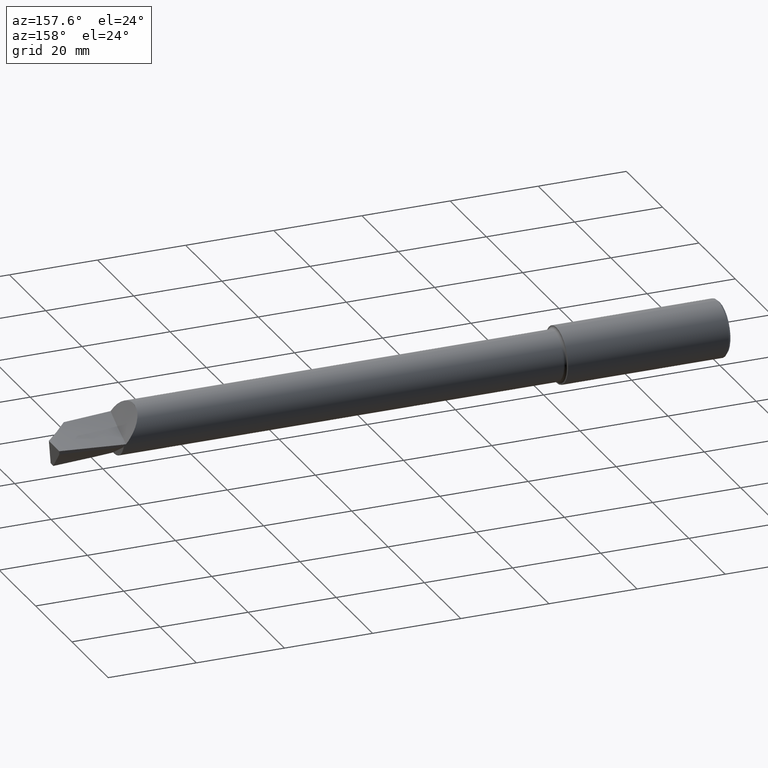
[diagram: clean part render]
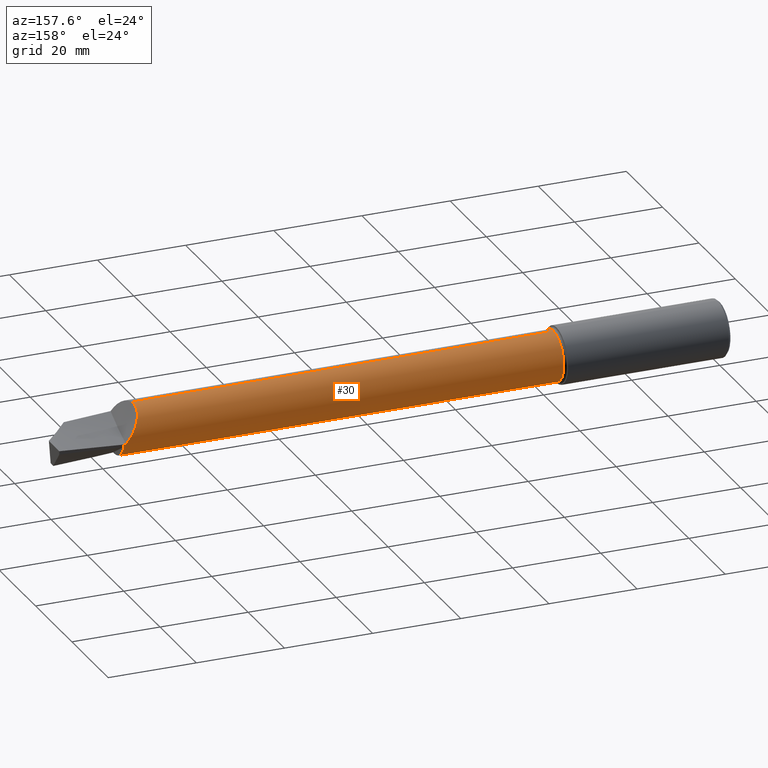
[diagram: same view with one face highlighted and labeled with its STEP entity id]
A machine part, auxiliary view. The second image highlights one B-rep face of the part: STEP entity #30.
In plain terms, the highlighted cylindrical surface (edge-blend (fillet) strip) has radius 5.588 mm, axis along (-1, -0, -0).
Its self-contained STEP definition (entity closure, byte-faithful):
#17 = EDGE_CURVE ( 'NONE', #519, #396, #702, .T. ) ;
#30 = ADVANCED_FACE ( 'NONE', ( #728 ), #202, .T. ) ;
#38 = CARTESIAN_POINT ( 'NONE',  ( 5.252899803584523575, 0.0009714720314203271947, 0.2199983901436112776 ) ) ;
#40 = DIRECTION ( 'NONE',  ( -1.000000000000000000, -0.000000000000000000, -0.000000000000000000 ) ) ;
#44 = CARTESIAN_POINT ( 'NONE',  ( 5.303450587856115561, 0.2017322369564578388, 0.08777317349638595612 ) ) ;
#47 = AXIS2_PLACEMENT_3D ( 'NONE', #613, #492, #260 ) ;
#49 = CARTESIAN_POINT ( 'NONE',  ( 5.252520733773949679, 0.003396144702146769358, 0.2199775199475226262 ) ) ;
#53 = CARTESIAN_POINT ( 'NONE',  ( 5.250000000000000888, 0.02296396303118268881, 0.2187982093206032042 ) ) ;
#69 = DIRECTION ( 'NONE',  ( -1.000000000000000000, -0.000000000000000000, -0.000000000000000000 ) ) ;
#71 = AXIS2_PLACEMENT_3D ( 'NONE', #381, #40, #319 ) ;
#86 = CARTESIAN_POINT ( 'NONE',  ( 5.286822331381984874, 0.1866629217514929606, 0.1166063220459099964 ) ) ;
#90 = CARTESIAN_POINT ( 'NONE',  ( 5.301951721649977856, 0.2006176853541234983, 0.09029816438342547213 ) ) ;
#95 = ORIENTED_EDGE ( 'NONE', *, *, #547, .T. ) ;
#97 = DIRECTION ( 'NONE',  ( 0.000000000000000000, 0.000000000000000000, 1.000000000000000000 ) ) ;
#99 = ORIENTED_EDGE ( 'NONE', *, *, #332, .T. ) ;
#137 = CARTESIAN_POINT ( 'NONE',  ( 5.250000000000000888, 0.09504805913230378323, 0.1984083326253766877 ) ) ;
#146 = CARTESIAN_POINT ( 'NONE',  ( 5.297319446116645736, 0.1969271478189842384, 0.09817724510292789863 ) ) ;
#158 = ORIENTED_EDGE ( 'NONE', *, *, #172, .F. ) ;
#159 = CARTESIAN_POINT ( 'NONE',  ( 5.410000000000000142, 0.000000000000000000, 0.000000000000000000 ) ) ;
#172 = EDGE_CURVE ( 'NONE', #358, #576, #647, .T. ) ;
#177 = DIRECTION ( 'NONE',  ( 1.000000000000000000, -0.000000000000000000, -0.000000000000000000 ) ) ;
#184 = CARTESIAN_POINT ( 'NONE',  ( 5.392944745247168825, 0.2140968924730454748, -0.05062134562993383935 ) ) ;
#196 = CARTESIAN_POINT ( 'NONE',  ( 5.392944745247168825, 0.2140968924730454748, -0.05062134562993383935 ) ) ;
#202 = CYLINDRICAL_SURFACE ( 'NONE', #71, 0.2200000000000000566 ) ;
#205 = CARTESIAN_POINT ( 'NONE',  ( 5.268791352084498669, 0.1599650663951595886, 0.1510341587815036413 ) ) ;
#208 = CARTESIAN_POINT ( 'NONE',  ( 5.410000000000001918, 0.2144189151190963594, -0.04923950486296321122 ) ) ;
#211 = CARTESIAN_POINT ( 'NONE',  ( 5.278168894559946978, 0.1761411732434174648, 0.1324183139899700046 ) ) ;
#216 = CARTESIAN_POINT ( 'NONE',  ( 5.326303742156078158, 0.2141922380105743262, 0.05056821540889350208 ) ) ;
#221 = EDGE_LOOP ( 'NONE', ( #563, #321, #309, #657, #236, #158, #99, #244, #95 ) ) ;
#222 = CARTESIAN_POINT ( 'NONE',  ( 5.264876125876235768, 0.1518534575458663771, 0.1592507360763968649 ) ) ;
#236 = ORIENTED_EDGE ( 'NONE', *, *, #310, .T. ) ;
#239 = EDGE_CURVE ( 'NONE', #732, #519, #412, .T. ) ;
#244 = ORIENTED_EDGE ( 'NONE', *, *, #623, .T. ) ;
#252 = CARTESIAN_POINT ( 'NONE',  ( 5.344850277066564459, 0.2189397232252884296, 0.02160200614133551966 ) ) ;
#260 = DIRECTION ( 'NONE',  ( 0.000000000000000000, 0.000000000000000000, 1.000000000000000000 ) ) ;
#261 = VECTOR ( 'NONE', #713, 39.37007874015748143 ) ;
#262 = CARTESIAN_POINT ( 'NONE',  ( 1.484525038226270244, 2.694222958124177561E-17, -0.2200000000000000566 ) ) ;
#264 = CARTESIAN_POINT ( 'NONE',  ( 5.251069953674378787, 0.01350924812411918516, 0.2196435465291619316 ) ) ;
#270 = CARTESIAN_POINT ( 'NONE',  ( 5.250000000000000888, 0.02296396303118268881, 0.2187982093206032042 ) ) ;
#282 = CARTESIAN_POINT ( 'NONE',  ( 5.251472560536515566, 0.1071583420974530909, 0.1926068782975457749 ) ) ;
#287 = B_SPLINE_CURVE_WITH_KNOTS ( 'NONE', 3,
 ( #447, #282, #573, #521, #752, #625, #222, #739, #459, #611, #508, #205, #378, #211, #86, #558, #681, #146, #618, #90, #323, #567, #329, #44, #514, #747, #216, #452, #631, #687, #393, #603, #252, #311, #494, #421, #320, #561, #731 ),
 .UNSPECIFIED., .F., .F.,
 ( 4, 2, 2, 1, 1, 1, 2, 2, 2, 2, 1, 1, 1, 1, 2, 2, 2, 2, 2, 1, 1, 2, 2, 4 ),
 ( 0.000000000000000000, 0.1250000000000632550, 0.1875000000000961176, 0.2187500000001124656, 0.2343750000001207090, 0.2421875000001248446, 0.2460937500001254830, 0.2500000000001261213, 0.3750000000000630607, 0.4375000000000336398, 0.4687500000000210387, 0.4843750000000147660, 0.4921875000000116018, 0.4960937500000122680, 0.4980468750000126010, 0.5000000000000128786, 0.6249999999999572564, 0.6874999999999319433, 0.7187499999999192868, 0.7343749999999129585, 0.7421874999999098499, 0.7460937499999106270, 0.7499999999999112932, 1.000000000000000000 ),
 .UNSPECIFIED. ) ;
#293 = AXIS2_PLACEMENT_3D ( 'NONE', #692, #749, #584 ) ;
#295 = EDGE_CURVE ( 'NONE', #661, #456, #591, .T. ) ;
#303 = CARTESIAN_POINT ( 'NONE',  ( 5.410000000000001918, 0.2144189151190963594, -0.04923950486296321122 ) ) ;
#308 = CARTESIAN_POINT ( 'NONE',  ( 5.410000000000000142, 0.2135228625924187884, -0.05299044395307136307 ) ) ;
#309 = ORIENTED_EDGE ( 'NONE', *, *, #17, .F. ) ;
#310 = EDGE_CURVE ( 'NONE', #732, #576, #460, .T. ) ;
#311 = CARTESIAN_POINT ( 'NONE',  ( 5.345672065019172692, 0.2190582683874626457, 0.02033850287371858495 ) ) ;
#316 = CARTESIAN_POINT ( 'NONE',  ( 5.252989359298702254, 0.0004094560187717709667, 0.2200000003197546961 ) ) ;
#319 = DIRECTION ( 'NONE',  ( 0.000000000000000000, 0.000000000000000000, 1.000000000000000000 ) ) ;
#320 = CARTESIAN_POINT ( 'NONE',  ( 5.361872680313166661, 0.2211791025387655485, -0.004520542396876575664 ) ) ;
#321 = ORIENTED_EDGE ( 'NONE', *, *, #344, .T. ) ;
#323 = CARTESIAN_POINT ( 'NONE',  ( 5.302742053925486587, 0.2012100239217667619, 0.08896533452429478128 ) ) ;
#329 = CARTESIAN_POINT ( 'NONE',  ( 5.303309749101932979, 0.2016291004824135591, 0.08800993919113511699 ) ) ;
#332 = EDGE_CURVE ( 'NONE', #358, #590, #287, .T. ) ;
#335 = CARTESIAN_POINT ( 'NONE',  ( 5.253048836201133831, -1.183062825525345383E-06, 0.2200124226379089887 ) ) ;
#342 = VERTEX_POINT ( 'NONE', #208 ) ;
#344 = EDGE_CURVE ( 'NONE', #456, #396, #673, .T. ) ;
#353 = CARTESIAN_POINT ( 'NONE',  ( 0.000000000000000000, 0.000000000000000000, 0.2200000000000000566 ) ) ;
#358 = VERTEX_POINT ( 'NONE', #137 ) ;
#378 = CARTESIAN_POINT ( 'NONE',  ( 5.273164231607916363, 0.1684140353893864850, 0.1420550892562131851 ) ) ;
#379 = VECTOR ( 'NONE', #69, 39.37007874015748143 ) ;
#381 = CARTESIAN_POINT ( 'NONE',  ( 0.000000000000000000, 0.000000000000000000, 0.000000000000000000 ) ) ;
#384 = CARTESIAN_POINT ( 'NONE',  ( 5.252011678586734789, 0.006780167464581198303, 0.2199103442296861943 ) ) ;
#387 =( BOUNDED_CURVE ( )  B_SPLINE_CURVE ( 2, ( #196, #727, #303 ),
 .UNSPECIFIED., .F., .T. ) 
 B_SPLINE_CURVE_WITH_KNOTS ( ( 3, 3 ),
 ( 0.5266614230579070854, 0.5400257304258038182 ),
 .UNSPECIFIED. ) 
 CURVE ( )  GEOMETRIC_REPRESENTATION_ITEM ( )  RATIONAL_B_SPLINE_CURVE ( ( 0.9955652346528230945, 0.9953917806560829140, 0.9952287059344252507 ) ) 
 REPRESENTATION_ITEM ( '' )  );
#393 = CARTESIAN_POINT ( 'NONE',  ( 5.341349125908413598, 0.2183424038738390471, 0.02700579478126316491 ) ) ;
#396 = VERTEX_POINT ( 'NONE', #262 ) ;
#412 = LINE ( 'NONE', #353, #379 ) ;
#417 = DIRECTION ( 'NONE',  ( 0.000000000000000000, 5.329070518200750605E-15, 1.000000000000000000 ) ) ;
#421 = CARTESIAN_POINT ( 'NONE',  ( 5.346537449119416863, 0.2191775090838475881, 0.01900924779463317171 ) ) ;
#430 = CIRCLE ( 'NONE', #293, 0.2200000000000000011 ) ;
#440 = CARTESIAN_POINT ( 'NONE',  ( 5.252747084439405967, 0.001941860339958889929, 0.2199919648580568321 ) ) ;
#447 = CARTESIAN_POINT ( 'NONE',  ( 5.250000000000000888, 0.09504805913230378323, 0.1984083326253766877 ) ) ;
#452 = CARTESIAN_POINT ( 'NONE',  ( 5.330111283526380639, 0.2155380220859020035, 0.04454306593680017884 ) ) ;
#456 = VERTEX_POINT ( 'NONE', #678 ) ;
#459 = CARTESIAN_POINT ( 'NONE',  ( 5.267877423613678722, 0.1581649231382637744, 0.1529219638397233128 ) ) ;
#460 = B_SPLINE_CURVE_WITH_KNOTS ( 'NONE', 3,
 ( #335, #316, #38, #440, #49, #384, #264, #734, #270 ),
 .UNSPECIFIED., .F., .F.,
 ( 4, 2, 1, 1, 1, 4 ),
 ( 0.9276727079954699695, 0.9321931637457538944, 0.9367136194960377082, 0.9457545309966040037, 0.9638363539977363725, 1.000000000000000000 ),
 .UNSPECIFIED. ) ;
#470 = AXIS2_PLACEMENT_3D ( 'NONE', #159, #675, #97 ) ;
#492 = DIRECTION ( 'NONE',  ( -1.000000000000000000, -0.000000000000000000, -0.000000000000000000 ) ) ;
#494 = CARTESIAN_POINT ( 'NONE',  ( 5.346221521786773678, 0.2191350097120725593, 0.01949428548441049097 ) ) ;
#508 = CARTESIAN_POINT ( 'NONE',  ( 5.268622416054465241, 0.1596362058502384662, 0.1513818459146411277 ) ) ;
#514 = CARTESIAN_POINT ( 'NONE',  ( 5.309107083977441910, 0.2058594515306521877, 0.07826862847856236316 ) ) ;
#519 = VERTEX_POINT ( 'NONE', #525 ) ;
#521 = CARTESIAN_POINT ( 'NONE',  ( 5.258515655996601978, 0.1351780063360196460, 0.1737028663086810920 ) ) ;
#525 = CARTESIAN_POINT ( 'NONE',  ( 1.484525038226270244, 0.000000000000000000, 0.2200000000000000566 ) ) ;
#547 = EDGE_CURVE ( 'NONE', #342, #661, #430, .T. ) ;
#558 = CARTESIAN_POINT ( 'NONE',  ( 5.289897884054999722, 0.1899916407718357791, 0.1111104138017025428 ) ) ;
#561 = CARTESIAN_POINT ( 'NONE',  ( 5.377263106783646940, 0.2194462568404662584, -0.02799947325392485031 ) ) ;
#563 = ORIENTED_EDGE ( 'NONE', *, *, #295, .T. ) ;
#567 = CARTESIAN_POINT ( 'NONE',  ( 5.303082447116823417, 0.2014617548662042956, 0.08839233498445403514 ) ) ;
#573 = CARTESIAN_POINT ( 'NONE',  ( 5.253785031901272440, 0.1187834096907167958, 0.1856707252788582230 ) ) ;
#576 = VERTEX_POINT ( 'NONE', #53 ) ;
#584 = DIRECTION ( 'NONE',  ( 0.000000000000000000, 0.000000000000000000, 1.000000000000000000 ) ) ;
#590 = VERTEX_POINT ( 'NONE', #184 ) ;
#591 = CIRCLE ( 'NONE', #470, 0.2200000000000000011 ) ;
#603 = CARTESIAN_POINT ( 'NONE',  ( 5.342949552235360500, 0.2186394009669333782, 0.02453030179456536231 ) ) ;
#611 = CARTESIAN_POINT ( 'NONE',  ( 5.268323433205456929, 0.1590487263599245915, 0.1519989609637832917 ) ) ;
#613 = CARTESIAN_POINT ( 'NONE',  ( 1.484525038226270244, 0.000000000000000000, 0.000000000000000000 ) ) ;
#618 = CARTESIAN_POINT ( 'NONE',  ( 5.300386731116057071, 0.1994133129509669533, 0.09294706894654218565 ) ) ;
#621 = CARTESIAN_POINT ( 'NONE',  ( 0.000000000000000000, 2.694222958124177561E-17, -0.2200000000000000566 ) ) ;
#623 = EDGE_CURVE ( 'NONE', #590, #342, #387, .T. ) ;
#625 = CARTESIAN_POINT ( 'NONE',  ( 5.263299120774839857, 0.1481083136068665207, 0.1627128149071685459 ) ) ;
#631 = CARTESIAN_POINT ( 'NONE',  ( 5.336129437027316236, 0.2172026737800336060, 0.03511665452093235690 ) ) ;
#639 = CARTESIAN_POINT ( 'NONE',  ( 5.253048836201133831, -1.183062825525345383E-06, 0.2200124226379089887 ) ) ;
#647 = CIRCLE ( 'NONE', #649, 0.2200000000000000566 ) ;
#649 = AXIS2_PLACEMENT_3D ( 'NONE', #726, #177, #417 ) ;
#657 = ORIENTED_EDGE ( 'NONE', *, *, #239, .F. ) ;
#661 = VERTEX_POINT ( 'NONE', #308 ) ;
#673 = LINE ( 'NONE', #621, #261 ) ;
#675 = DIRECTION ( 'NONE',  ( -1.000000000000000000, -0.000000000000000000, -0.000000000000000000 ) ) ;
#678 = CARTESIAN_POINT ( 'NONE',  ( 5.410000000000000142, 2.694222958124177253E-17, -0.2200000000000000011 ) ) ;
#681 = CARTESIAN_POINT ( 'NONE',  ( 5.294797823663016878, 0.1946680960171449093, 0.1025422805366140583 ) ) ;
#687 = CARTESIAN_POINT ( 'NONE',  ( 5.338186628435208192, 0.2176984924494593521, 0.03190986540131428295 ) ) ;
#692 = CARTESIAN_POINT ( 'NONE',  ( 5.410000000000000142, 0.000000000000000000, 0.000000000000000000 ) ) ;
#702 = CIRCLE ( 'NONE', #47, 0.2200000000000000566 ) ;
#713 = DIRECTION ( 'NONE',  ( -1.000000000000000000, -0.000000000000000000, -0.000000000000000000 ) ) ;
#726 = CARTESIAN_POINT ( 'NONE',  ( 5.250000000000000888, 0.000000000000000000, 0.000000000000000000 ) ) ;
#727 = CARTESIAN_POINT ( 'NONE',  ( 5.401469481609320944, 0.2142601318164513158, -0.04993094446185701585 ) ) ;
#728 = FACE_OUTER_BOUND ( 'NONE', #221, .T. ) ;
#731 = CARTESIAN_POINT ( 'NONE',  ( 5.392944745247168825, 0.2140968924730454748, -0.05062134562993383935 ) ) ;
#732 = VERTEX_POINT ( 'NONE', #639 ) ;
#734 = CARTESIAN_POINT ( 'NONE',  ( 5.250393707398775867, 0.01920438848276740523, 0.2191927973443306421 ) ) ;
#739 = CARTESIAN_POINT ( 'NONE',  ( 5.266853987338341980, 0.1560847454646942245, 0.1550568531507960923 ) ) ;
#747 = CARTESIAN_POINT ( 'NONE',  ( 5.315494800936125586, 0.2096186112504940802, 0.06783711927764354832 ) ) ;
#749 = DIRECTION ( 'NONE',  ( -1.000000000000000000, -0.000000000000000000, -0.000000000000000000 ) ) ;
#752 = CARTESIAN_POINT ( 'NONE',  ( 5.260302850203079750, 0.1404692177818710475, 0.1694536208928180965 ) ) ;